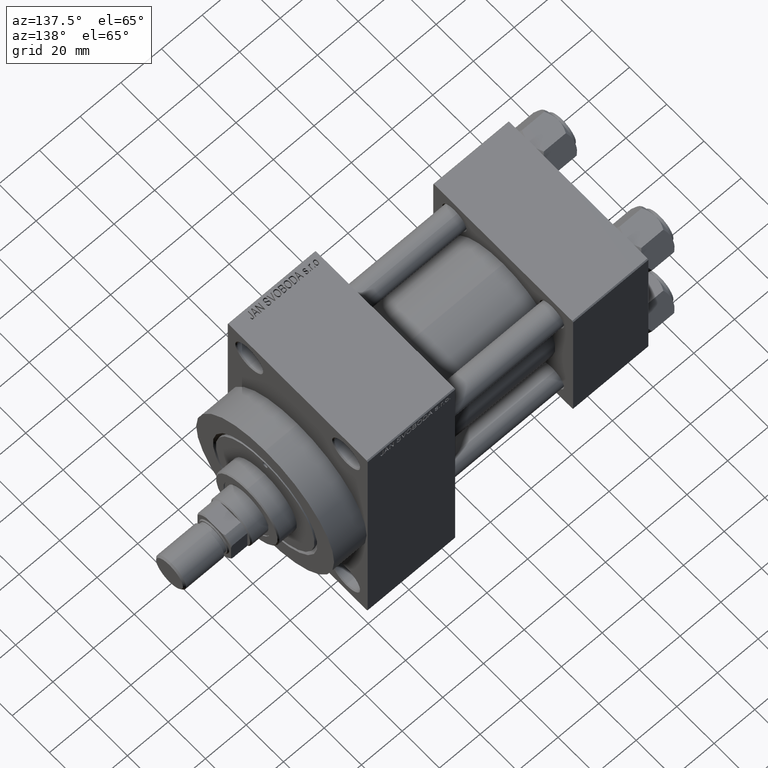
[diagram: clean part render]
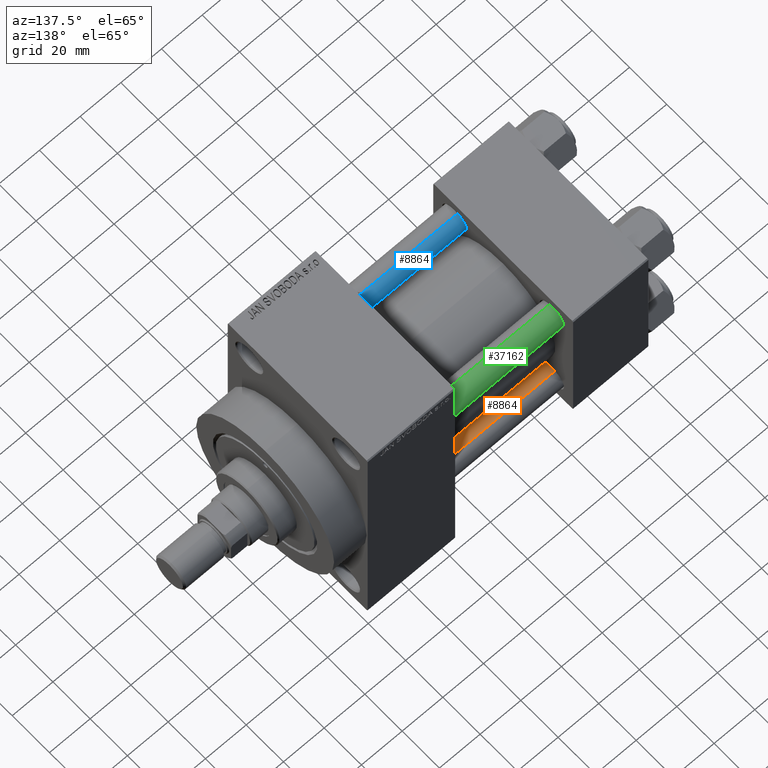
[diagram: same view with three faces highlighted in distinct colors, each labeled with its STEP entity id]
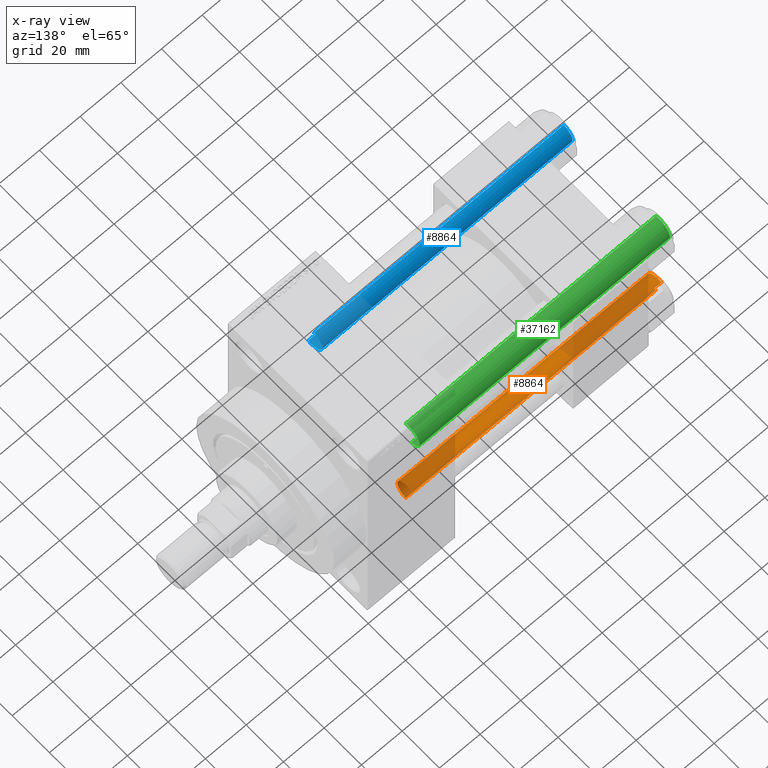
[diagram: x-ray of the same camera — body ghosted, the three highlighted faces saturated]
A machine part, auxiliary view with three faces highlighted in distinct colors.
The next image is the same camera in x-ray (body ghosted, the three faces saturated) — at least one of them is partly hidden behind the body in this view.
Their STEP definitions:

[orange] entity #8864 — the highlighted cylindrical surface (edge-blend (fillet) strip) has radius 6 mm, axis along (1, -0, 0).
#2465 = CYLINDRICAL_SURFACE ( 'NONE', #25176, 6.000000000000000888 ) ;
#2720 = CARTESIAN_POINT ( 'NONE',  ( 0.000000000000000000, 0.000000000000000000, 124.0000000000000000 ) ) ;
#2784 = ORIENTED_EDGE ( 'NONE', *, *, #31997, .T. ) ;
#3604 = DIRECTION ( 'NONE',  ( 1.000000000000000000, 0.000000000000000000, 0.000000000000000000 ) ) ;
#6493 = DIRECTION ( 'NONE',  ( -0.000000000000000000, -0.000000000000000000, -1.000000000000000000 ) ) ;
#6660 = DIRECTION ( 'NONE',  ( 1.000000000000000000, 0.000000000000000000, 0.000000000000000000 ) ) ;
#6791 = VERTEX_POINT ( 'NONE', #30408 ) ;
#8864 = ADVANCED_FACE ( 'NONE', ( #13743 ), #2465, .T. ) ;
#13284 = VERTEX_POINT ( 'NONE', #26958 ) ;
#13743 = FACE_OUTER_BOUND ( 'NONE', #20484, .T. ) ;
#14183 = CARTESIAN_POINT ( 'NONE',  ( 0.000000000000000000, 0.000000000000000000, 123.5000000000000426 ) ) ;
#14511 = LINE ( 'NONE', #21540, #19179 ) ;
#16451 = CARTESIAN_POINT ( 'NONE',  ( 6.000000000000000888, 7.347880794884120722E-16, 124.0000000000000000 ) ) ;
#16501 = ORIENTED_EDGE ( 'NONE', *, *, #33385, .T. ) ;
#18393 = VERTEX_POINT ( 'NONE', #47997 ) ;
#19179 = VECTOR ( 'NONE', #6493, 1000.000000000000000 ) ;
#20243 = ORIENTED_EDGE ( 'NONE', *, *, #43120, .T. ) ;
#20484 = EDGE_LOOP ( 'NONE', ( #35564, #2784, #20243, #16501 ) ) ;
#21435 = LINE ( 'NONE', #16451, #34263 ) ;
#21540 = CARTESIAN_POINT ( 'NONE',  ( -6.000000000000000888, 0.000000000000000000, 124.0000000000000000 ) ) ;
#25176 = AXIS2_PLACEMENT_3D ( 'NONE', #2720, #44371, #48648 ) ;
#26958 = CARTESIAN_POINT ( 'NONE',  ( 6.000000000000000888, 7.347880794884120722E-16, 123.5000000000000426 ) ) ;
#29066 = VERTEX_POINT ( 'NONE', #35033 ) ;
#30408 = CARTESIAN_POINT ( 'NONE',  ( 6.000000000000000888, 7.347880794884120722E-16, 0.4999999999999865663 ) ) ;
#31017 = AXIS2_PLACEMENT_3D ( 'NONE', #49523, #34443, #3604 ) ;
#31761 = DIRECTION ( 'NONE',  ( -0.000000000000000000, -0.000000000000000000, -1.000000000000000000 ) ) ;
#31997 = EDGE_CURVE ( 'NONE', #13284, #29066, #38941, .T. ) ;
#33385 = EDGE_CURVE ( 'NONE', #18393, #6791, #46240, .T. ) ;
#34263 = VECTOR ( 'NONE', #31761, 1000.000000000000000 ) ;
#34443 = DIRECTION ( 'NONE',  ( -0.000000000000000000, -0.000000000000000000, 1.000000000000000000 ) ) ;
#35033 = CARTESIAN_POINT ( 'NONE',  ( -6.000000000000000888, 0.000000000000000000, 123.5000000000000426 ) ) ;
#35564 = ORIENTED_EDGE ( 'NONE', *, *, #38587, .F. ) ;
#38587 = EDGE_CURVE ( 'NONE', #13284, #6791, #21435, .T. ) ;
#38941 = CIRCLE ( 'NONE', #46967, 6.000000000000000888 ) ;
#40794 = DIRECTION ( 'NONE',  ( 0.000000000000000000, 0.000000000000000000, -1.000000000000000000 ) ) ;
#43120 = EDGE_CURVE ( 'NONE', #29066, #18393, #14511, .T. ) ;
#44371 = DIRECTION ( 'NONE',  ( -0.000000000000000000, -0.000000000000000000, -1.000000000000000000 ) ) ;
#46240 = CIRCLE ( 'NONE', #31017, 6.000000000000000888 ) ;
#46967 = AXIS2_PLACEMENT_3D ( 'NONE', #14183, #40794, #6660 ) ;
#47997 = CARTESIAN_POINT ( 'NONE',  ( -6.000000000000000888, 0.000000000000000000, 0.4999999999999865663 ) ) ;
#48648 = DIRECTION ( 'NONE',  ( -1.000000000000000000, 0.000000000000000000, 0.000000000000000000 ) ) ;
#49523 = CARTESIAN_POINT ( 'NONE',  ( 0.000000000000000000, 0.000000000000000000, 0.4999999999999865663 ) ) ;

[blue] entity #8864 — the highlighted cylindrical surface (edge-blend (fillet) strip) has radius 6 mm, axis along (1, 0, 0).
#2465 = CYLINDRICAL_SURFACE ( 'NONE', #25176, 6.000000000000000888 ) ;
#2720 = CARTESIAN_POINT ( 'NONE',  ( 0.000000000000000000, 0.000000000000000000, 124.0000000000000000 ) ) ;
#2784 = ORIENTED_EDGE ( 'NONE', *, *, #31997, .T. ) ;
#3604 = DIRECTION ( 'NONE',  ( 1.000000000000000000, 0.000000000000000000, 0.000000000000000000 ) ) ;
#6493 = DIRECTION ( 'NONE',  ( -0.000000000000000000, -0.000000000000000000, -1.000000000000000000 ) ) ;
#6660 = DIRECTION ( 'NONE',  ( 1.000000000000000000, 0.000000000000000000, 0.000000000000000000 ) ) ;
#6791 = VERTEX_POINT ( 'NONE', #30408 ) ;
#8864 = ADVANCED_FACE ( 'NONE', ( #13743 ), #2465, .T. ) ;
#13284 = VERTEX_POINT ( 'NONE', #26958 ) ;
#13743 = FACE_OUTER_BOUND ( 'NONE', #20484, .T. ) ;
#14183 = CARTESIAN_POINT ( 'NONE',  ( 0.000000000000000000, 0.000000000000000000, 123.5000000000000426 ) ) ;
#14511 = LINE ( 'NONE', #21540, #19179 ) ;
#16451 = CARTESIAN_POINT ( 'NONE',  ( 6.000000000000000888, 7.347880794884120722E-16, 124.0000000000000000 ) ) ;
#16501 = ORIENTED_EDGE ( 'NONE', *, *, #33385, .T. ) ;
#18393 = VERTEX_POINT ( 'NONE', #47997 ) ;
#19179 = VECTOR ( 'NONE', #6493, 1000.000000000000000 ) ;
#20243 = ORIENTED_EDGE ( 'NONE', *, *, #43120, .T. ) ;
#20484 = EDGE_LOOP ( 'NONE', ( #35564, #2784, #20243, #16501 ) ) ;
#21435 = LINE ( 'NONE', #16451, #34263 ) ;
#21540 = CARTESIAN_POINT ( 'NONE',  ( -6.000000000000000888, 0.000000000000000000, 124.0000000000000000 ) ) ;
#25176 = AXIS2_PLACEMENT_3D ( 'NONE', #2720, #44371, #48648 ) ;
#26958 = CARTESIAN_POINT ( 'NONE',  ( 6.000000000000000888, 7.347880794884120722E-16, 123.5000000000000426 ) ) ;
#29066 = VERTEX_POINT ( 'NONE', #35033 ) ;
#30408 = CARTESIAN_POINT ( 'NONE',  ( 6.000000000000000888, 7.347880794884120722E-16, 0.4999999999999865663 ) ) ;
#31017 = AXIS2_PLACEMENT_3D ( 'NONE', #49523, #34443, #3604 ) ;
#31761 = DIRECTION ( 'NONE',  ( -0.000000000000000000, -0.000000000000000000, -1.000000000000000000 ) ) ;
#31997 = EDGE_CURVE ( 'NONE', #13284, #29066, #38941, .T. ) ;
#33385 = EDGE_CURVE ( 'NONE', #18393, #6791, #46240, .T. ) ;
#34263 = VECTOR ( 'NONE', #31761, 1000.000000000000000 ) ;
#34443 = DIRECTION ( 'NONE',  ( -0.000000000000000000, -0.000000000000000000, 1.000000000000000000 ) ) ;
#35033 = CARTESIAN_POINT ( 'NONE',  ( -6.000000000000000888, 0.000000000000000000, 123.5000000000000426 ) ) ;
#35564 = ORIENTED_EDGE ( 'NONE', *, *, #38587, .F. ) ;
#38587 = EDGE_CURVE ( 'NONE', #13284, #6791, #21435, .T. ) ;
#38941 = CIRCLE ( 'NONE', #46967, 6.000000000000000888 ) ;
#40794 = DIRECTION ( 'NONE',  ( 0.000000000000000000, 0.000000000000000000, -1.000000000000000000 ) ) ;
#43120 = EDGE_CURVE ( 'NONE', #29066, #18393, #14511, .T. ) ;
#44371 = DIRECTION ( 'NONE',  ( -0.000000000000000000, -0.000000000000000000, -1.000000000000000000 ) ) ;
#46240 = CIRCLE ( 'NONE', #31017, 6.000000000000000888 ) ;
#46967 = AXIS2_PLACEMENT_3D ( 'NONE', #14183, #40794, #6660 ) ;
#47997 = CARTESIAN_POINT ( 'NONE',  ( -6.000000000000000888, 0.000000000000000000, 0.4999999999999865663 ) ) ;
#48648 = DIRECTION ( 'NONE',  ( -1.000000000000000000, 0.000000000000000000, 0.000000000000000000 ) ) ;
#49523 = CARTESIAN_POINT ( 'NONE',  ( 0.000000000000000000, 0.000000000000000000, 0.4999999999999865663 ) ) ;

[green] entity #37162 — the highlighted cylindrical surface (edge-blend (fillet) strip) has radius 6 mm, axis along (-1, -0, 0).
#2834 = CIRCLE ( 'NONE', #21273, 6.000000000000000888 ) ;
#4541 = FACE_OUTER_BOUND ( 'NONE', #44075, .T. ) ;
#4949 = DIRECTION ( 'NONE',  ( 1.000000000000000000, 0.000000000000000000, 0.000000000000000000 ) ) ;
#5617 = EDGE_CURVE ( 'NONE', #6791, #18393, #29881, .T. ) ;
#6493 = DIRECTION ( 'NONE',  ( -0.000000000000000000, -0.000000000000000000, -1.000000000000000000 ) ) ;
#6791 = VERTEX_POINT ( 'NONE', #30408 ) ;
#8260 = AXIS2_PLACEMENT_3D ( 'NONE', #26205, #41760, #18157 ) ;
#8545 = CARTESIAN_POINT ( 'NONE',  ( 0.000000000000000000, 0.000000000000000000, 124.0000000000000000 ) ) ;
#9210 = DIRECTION ( 'NONE',  ( 0.000000000000000000, 0.000000000000000000, -1.000000000000000000 ) ) ;
#11468 = ORIENTED_EDGE ( 'NONE', *, *, #11926, .T. ) ;
#11926 = EDGE_CURVE ( 'NONE', #29066, #13284, #2834, .T. ) ;
#13284 = VERTEX_POINT ( 'NONE', #26958 ) ;
#14511 = LINE ( 'NONE', #21540, #19179 ) ;
#16451 = CARTESIAN_POINT ( 'NONE',  ( 6.000000000000000888, 7.347880794884120722E-16, 124.0000000000000000 ) ) ;
#18157 = DIRECTION ( 'NONE',  ( 1.000000000000000000, 0.000000000000000000, 0.000000000000000000 ) ) ;
#18393 = VERTEX_POINT ( 'NONE', #47997 ) ;
#19179 = VECTOR ( 'NONE', #6493, 1000.000000000000000 ) ;
#19317 = CYLINDRICAL_SURFACE ( 'NONE', #34305, 6.000000000000000888 ) ;
#19831 = DIRECTION ( 'NONE',  ( -0.000000000000000000, -0.000000000000000000, -1.000000000000000000 ) ) ;
#21273 = AXIS2_PLACEMENT_3D ( 'NONE', #27795, #9210, #4949 ) ;
#21435 = LINE ( 'NONE', #16451, #34263 ) ;
#21540 = CARTESIAN_POINT ( 'NONE',  ( -6.000000000000000888, 0.000000000000000000, 124.0000000000000000 ) ) ;
#26205 = CARTESIAN_POINT ( 'NONE',  ( 0.000000000000000000, 0.000000000000000000, 0.4999999999999865663 ) ) ;
#26958 = CARTESIAN_POINT ( 'NONE',  ( 6.000000000000000888, 7.347880794884120722E-16, 123.5000000000000426 ) ) ;
#27795 = CARTESIAN_POINT ( 'NONE',  ( 0.000000000000000000, 0.000000000000000000, 123.5000000000000426 ) ) ;
#29066 = VERTEX_POINT ( 'NONE', #35033 ) ;
#29881 = CIRCLE ( 'NONE', #8260, 6.000000000000000888 ) ;
#30408 = CARTESIAN_POINT ( 'NONE',  ( 6.000000000000000888, 7.347880794884120722E-16, 0.4999999999999865663 ) ) ;
#31761 = DIRECTION ( 'NONE',  ( -0.000000000000000000, -0.000000000000000000, -1.000000000000000000 ) ) ;
#34263 = VECTOR ( 'NONE', #31761, 1000.000000000000000 ) ;
#34305 = AXIS2_PLACEMENT_3D ( 'NONE', #8545, #19831, #35132 ) ;
#35033 = CARTESIAN_POINT ( 'NONE',  ( -6.000000000000000888, 0.000000000000000000, 123.5000000000000426 ) ) ;
#35098 = ORIENTED_EDGE ( 'NONE', *, *, #43120, .F. ) ;
#35132 = DIRECTION ( 'NONE',  ( -1.000000000000000000, 0.000000000000000000, 0.000000000000000000 ) ) ;
#37162 = ADVANCED_FACE ( 'NONE', ( #4541 ), #19317, .T. ) ;
#38587 = EDGE_CURVE ( 'NONE', #13284, #6791, #21435, .T. ) ;
#41760 = DIRECTION ( 'NONE',  ( -0.000000000000000000, -0.000000000000000000, 1.000000000000000000 ) ) ;
#43120 = EDGE_CURVE ( 'NONE', #29066, #18393, #14511, .T. ) ;
#44075 = EDGE_LOOP ( 'NONE', ( #11468, #49130, #45677, #35098 ) ) ;
#45677 = ORIENTED_EDGE ( 'NONE', *, *, #5617, .T. ) ;
#47997 = CARTESIAN_POINT ( 'NONE',  ( -6.000000000000000888, 0.000000000000000000, 0.4999999999999865663 ) ) ;
#49130 = ORIENTED_EDGE ( 'NONE', *, *, #38587, .T. ) ;